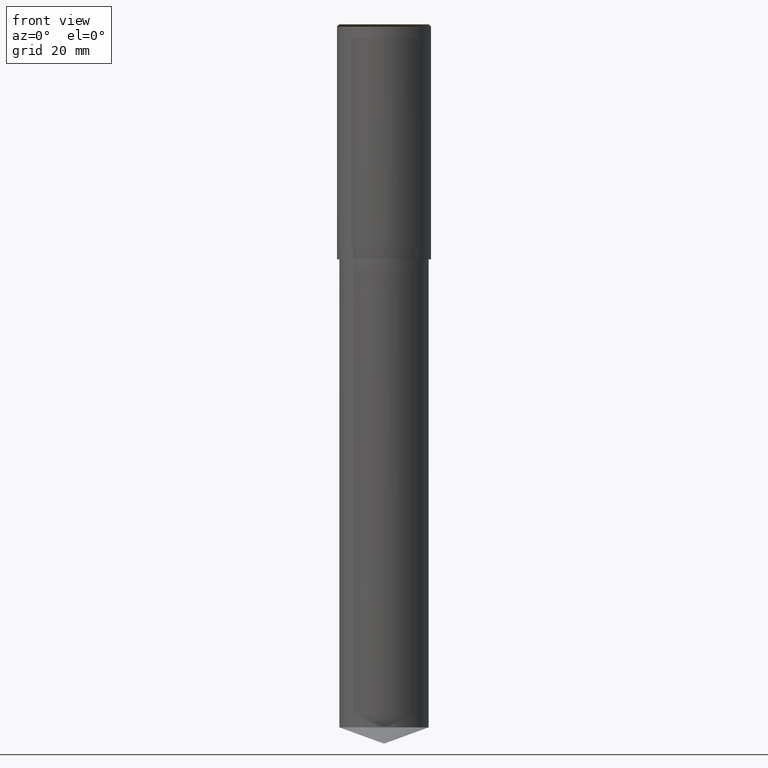
[diagram: clean part render]
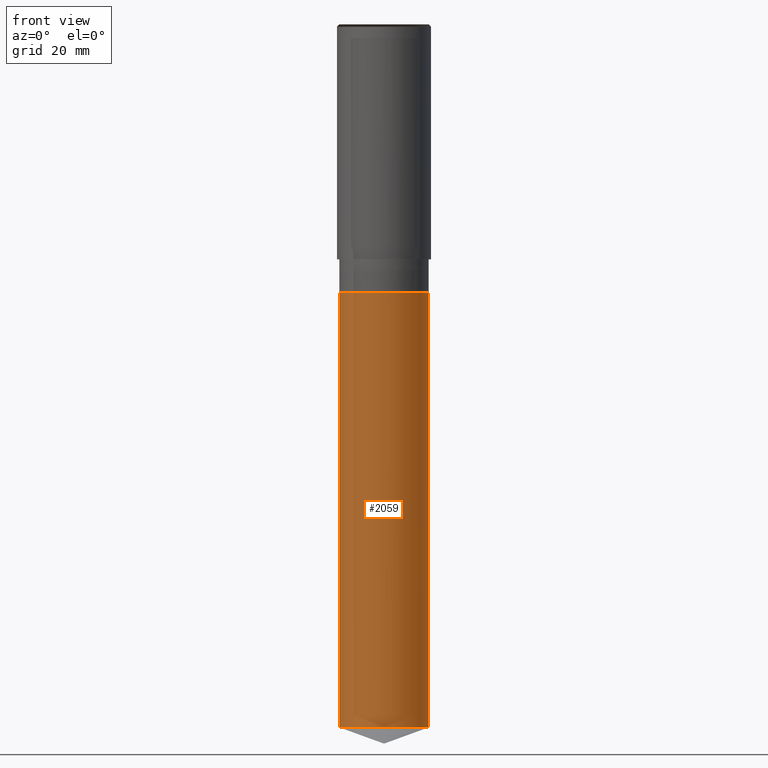
[diagram: same view with one face highlighted and labeled with its STEP entity id]
A machine part, front view. The second image highlights one B-rep face of the part: STEP entity #2059.
In plain terms, the highlighted face is a freeform B-spline surface patch.
Its self-contained STEP definition (entity closure, byte-faithful):
#1909=CARTESIAN_POINT('',(9.5,0.0,-99.542282774471));
#1913=CARTESIAN_POINT('',(-9.5,0.0,-99.542282774471));
#1914=CARTESIAN_POINT('',(9.5,0.0,-7.0));
#1918=CARTESIAN_POINT('',(-9.5,0.0,-7.0));
#1920=CARTESIAN_POINT('',(-9.5,-9.5,-99.542282774471));
#1921=CARTESIAN_POINT('',(0.0,-9.5,-99.542282774471));
#1922=CARTESIAN_POINT('',(9.5,-9.5,-99.542282774471));
#1923=CARTESIAN_POINT('',(-9.5,-9.5,-7.0));
#1924=CARTESIAN_POINT('',(0.0,-9.5,-7.0));
#1925=CARTESIAN_POINT('',(9.5,-9.5,-7.0));
#2040=(
BOUNDED_SURFACE()
B_SPLINE_SURFACE(1,2,(
(#1913,#1920,#1921,#1922,#1909),
(#1918,#1923,#1924,#1925,#1914)
), .UNSPECIFIED.,.F.,.F.,.F.)
B_SPLINE_SURFACE_WITH_KNOTS((2,2),(3,2,3),(
0.0,1.0),(
0.0,0.5,1.0), .UNSPECIFIED.)
GEOMETRIC_REPRESENTATION_ITEM()
RATIONAL_B_SPLINE_SURFACE(((1.0,0.707106781187,1.0,0.707106781187,1.0),
(1.0,0.707106781187,1.0,0.707106781187,1.0)
))
REPRESENTATION_ITEM('')
SURFACE()
);
#2041=(
BOUNDED_CURVE()
B_SPLINE_CURVE(2,(#1909,#1922,#1921,#1920,#1913),.UNSPECIFIED.,.F.,.F.)
B_SPLINE_CURVE_WITH_KNOTS((3,2,3),
(0.0,0.5,1.0),.UNSPECIFIED.)
CURVE()
GEOMETRIC_REPRESENTATION_ITEM()
RATIONAL_B_SPLINE_CURVE((1.0,0.707106781187,1.0,0.707106781187,1.0))
REPRESENTATION_ITEM('')
);
#2042=(
BOUNDED_CURVE()
B_SPLINE_CURVE(1,(#1913,#1918),.UNSPECIFIED.,.F.,.F.)
B_SPLINE_CURVE_WITH_KNOTS((2,2),
(0.0,1.0),.UNSPECIFIED.)
CURVE()
GEOMETRIC_REPRESENTATION_ITEM()
RATIONAL_B_SPLINE_CURVE((1.0,1.0))
REPRESENTATION_ITEM('')
);
#2043=(
BOUNDED_CURVE()
B_SPLINE_CURVE(2,(#1918,#1923,#1924,#1925,#1914),.UNSPECIFIED.,.F.,.F.)
B_SPLINE_CURVE_WITH_KNOTS((3,2,3),
(0.0,0.5,1.0),.UNSPECIFIED.)
CURVE()
GEOMETRIC_REPRESENTATION_ITEM()
RATIONAL_B_SPLINE_CURVE((1.0,0.707106781187,1.0,0.707106781187,1.0))
REPRESENTATION_ITEM('')
);
#2044=(
BOUNDED_CURVE()
B_SPLINE_CURVE(1,(#1914,#1909),.UNSPECIFIED.,.F.,.F.)
B_SPLINE_CURVE_WITH_KNOTS((2,2),
(0.0,1.0),.UNSPECIFIED.)
CURVE()
GEOMETRIC_REPRESENTATION_ITEM()
RATIONAL_B_SPLINE_CURVE((1.0,1.0))
REPRESENTATION_ITEM('')
);
#2045=VERTEX_POINT('',#1909);
#2046=VERTEX_POINT('',#1913);
#2047=VERTEX_POINT('',#1914);
#2048=VERTEX_POINT('',#1918);
#2049=EDGE_CURVE('',#2045,#2046,#2041,.T.);
#2050=EDGE_CURVE('',#2046,#2048,#2042,.T.);
#2051=EDGE_CURVE('',#2048,#2047,#2043,.T.);
#2052=EDGE_CURVE('',#2047,#2045,#2044,.T.);
#2053=ORIENTED_EDGE('',*,*,#2049,.T.);
#2054=ORIENTED_EDGE('',*,*,#2050,.T.);
#2055=ORIENTED_EDGE('',*,*,#2051,.T.);
#2056=ORIENTED_EDGE('',*,*,#2052,.T.);
#2057=EDGE_LOOP('',(#2053,#2054,#2055,#2056));
#2058=FACE_OUTER_BOUND('',#2057,.T.);
#2059=ADVANCED_FACE('',(#2058),#2040,.T.);